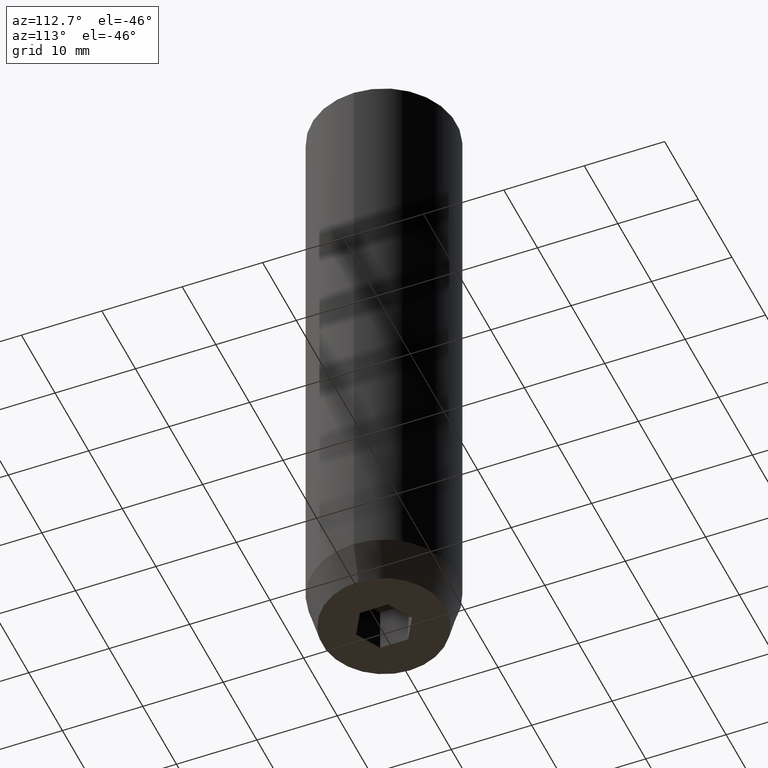
[diagram: clean part render]
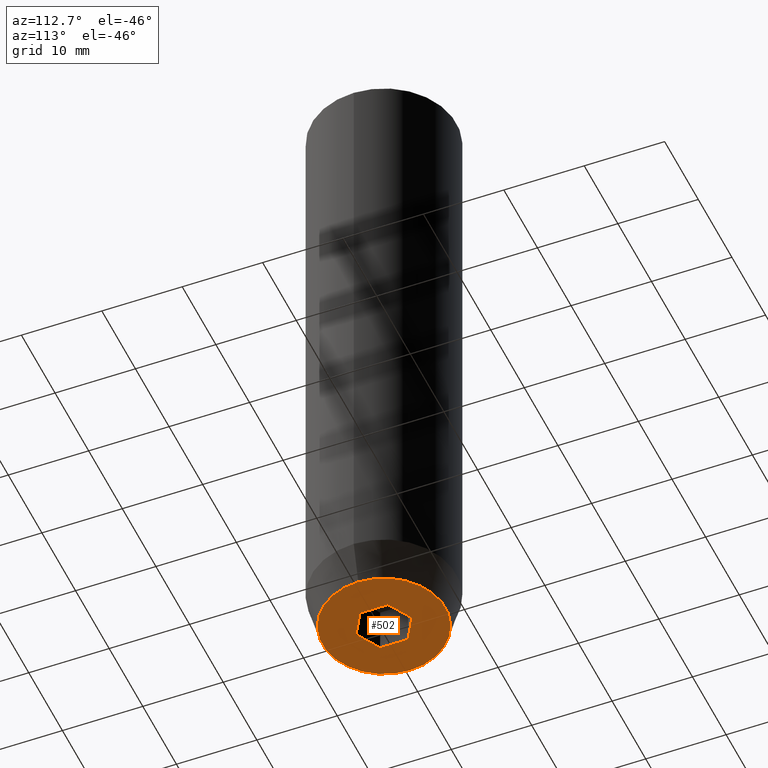
[diagram: same view with one face highlighted and labeled with its STEP entity id]
A machine part, auxiliary view. The second image highlights one B-rep face of the part: STEP entity #502.
In plain terms, the highlighted planar face has unit normal (0, 0, -1).
Its self-contained STEP definition (entity closure, byte-faithful):
#3 = CARTESIAN_POINT ( 'NONE',  ( 0.000000000000000000, 0.000000000000000000, -80.00000000000000000 ) ) ;
#13 = DIRECTION ( 'NONE',  ( 1.000000000000000000, 0.000000000000000000, 0.000000000000000000 ) ) ;
#21 = DIRECTION ( 'NONE',  ( 0.8660254037844387076, 0.4999999999999997224, 0.000000000000000000 ) ) ;
#31 = FACE_BOUND ( 'NONE', #237, .T. ) ;
#32 = ORIENTED_EDGE ( 'NONE', *, *, #507, .F. ) ;
#35 = EDGE_CURVE ( 'NONE', #381, #435, #213, .T. ) ;
#36 = CARTESIAN_POINT ( 'NONE',  ( 0.000000000000000000, -3.464101615137753942, -80.00000000000000000 ) ) ;
#48 = VERTEX_POINT ( 'NONE', #251 ) ;
#59 = DIRECTION ( 'NONE',  ( 2.503857664561932376E-16, 1.000000000000000000, 0.000000000000000000 ) ) ;
#69 = DIRECTION ( 'NONE',  ( -2.503857664561932376E-16, -1.000000000000000000, 0.000000000000000000 ) ) ;
#75 = ORIENTED_EDGE ( 'NONE', *, *, #598, .F. ) ;
#86 = CARTESIAN_POINT ( 'NONE',  ( 0.000000000000000000, 0.000000000000000000, -80.00000000000000000 ) ) ;
#93 = EDGE_CURVE ( 'NONE', #246, #441, #447, .T. ) ;
#94 = CARTESIAN_POINT ( 'NONE',  ( -7.660254037844381969, 1.020146339021394469E-15, -80.00000000000000000 ) ) ;
#134 = EDGE_CURVE ( 'NONE', #483, #48, #508, .T. ) ;
#138 = DIRECTION ( 'NONE',  ( 0.8660254037844387076, -0.4999999999999997780, 0.000000000000000000 ) ) ;
#143 = DIRECTION ( 'NONE',  ( -0.000000000000000000, -0.000000000000000000, 1.000000000000000000 ) ) ;
#174 = CARTESIAN_POINT ( 'NONE',  ( 0.000000000000000000, 7.660254037844381969, -80.00000000000000000 ) ) ;
#178 = CARTESIAN_POINT ( 'NONE',  ( 0.000000000000000000, 3.464101615137754830, -80.00000000000000000 ) ) ;
#190 = CARTESIAN_POINT ( 'NONE',  ( 1.499999999999999112, 2.598076211353316012, -80.00000000000000000 ) ) ;
#197 = ORIENTED_EDGE ( 'NONE', *, *, #93, .F. ) ;
#198 = VECTOR ( 'NONE', #638, 999.9999999999998863 ) ;
#199 = VECTOR ( 'NONE', #69, 1000.000000000000000 ) ;
#213 = CIRCLE ( 'NONE', #304, 7.660254037844381969 ) ;
#215 = VECTOR ( 'NONE', #138, 1000.000000000000114 ) ;
#226 = CARTESIAN_POINT ( 'NONE',  ( -3.000000000000000888, -1.732050807568876527, -80.00000000000000000 ) ) ;
#230 = ORIENTED_EDGE ( 'NONE', *, *, #134, .F. ) ;
#237 = EDGE_LOOP ( 'NONE', ( #32, #230, #533, #197, #524, #368 ) ) ;
#246 = VERTEX_POINT ( 'NONE', #555 ) ;
#251 = CARTESIAN_POINT ( 'NONE',  ( -3.000000000000000000, 1.732050807568877859, -80.00000000000000000 ) ) ;
#293 = LINE ( 'NONE', #190, #215 ) ;
#304 = AXIS2_PLACEMENT_3D ( 'NONE', #3, #143, #451 ) ;
#309 = AXIS2_PLACEMENT_3D ( 'NONE', #86, #463, #13 ) ;
#320 = PLANE ( 'NONE',  #503 ) ;
#325 = ORIENTED_EDGE ( 'NONE', *, *, #35, .F. ) ;
#328 = CARTESIAN_POINT ( 'NONE',  ( 2.999999999999999556, -7.511572993685796142E-16, -80.00000000000000000 ) ) ;
#355 = VECTOR ( 'NONE', #513, 1000.000000000000114 ) ;
#360 = CARTESIAN_POINT ( 'NONE',  ( 3.000000000000000000, 1.732050807568877193, -80.00000000000000000 ) ) ;
#362 = VECTOR ( 'NONE', #59, 1000.000000000000000 ) ;
#368 = ORIENTED_EDGE ( 'NONE', *, *, #417, .F. ) ;
#369 = LINE ( 'NONE', #564, #355 ) ;
#381 = VERTEX_POINT ( 'NONE', #94 ) ;
#401 = EDGE_CURVE ( 'NONE', #441, #483, #369, .T. ) ;
#417 = EDGE_CURVE ( 'NONE', #528, #566, #293, .T. ) ;
#420 = DIRECTION ( 'NONE',  ( -1.000000000000000000, 0.000000000000000000, -0.000000000000000000 ) ) ;
#435 = VERTEX_POINT ( 'NONE', #529 ) ;
#441 = VERTEX_POINT ( 'NONE', #36 ) ;
#447 = LINE ( 'NONE', #584, #198 ) ;
#451 = DIRECTION ( 'NONE',  ( 1.000000000000000000, 0.000000000000000000, 0.000000000000000000 ) ) ;
#463 = DIRECTION ( 'NONE',  ( -0.000000000000000000, -0.000000000000000000, 1.000000000000000000 ) ) ;
#470 = LINE ( 'NONE', #477, #473 ) ;
#473 = VECTOR ( 'NONE', #21, 1000.000000000000114 ) ;
#477 = CARTESIAN_POINT ( 'NONE',  ( -1.499999999999999334, 2.598076211353316456, -80.00000000000000000 ) ) ;
#483 = VERTEX_POINT ( 'NONE', #226 ) ;
#502 = ADVANCED_FACE ( 'NONE', ( #31, #603 ), #320, .T. ) ;
#503 = AXIS2_PLACEMENT_3D ( 'NONE', #174, #510, #420 ) ;
#507 = EDGE_CURVE ( 'NONE', #48, #528, #470, .T. ) ;
#508 = LINE ( 'NONE', #552, #362 ) ;
#510 = DIRECTION ( 'NONE',  ( 0.000000000000000000, 0.000000000000000000, -1.000000000000000000 ) ) ;
#513 = DIRECTION ( 'NONE',  ( -0.8660254037844387076, 0.4999999999999997780, 0.000000000000000000 ) ) ;
#524 = ORIENTED_EDGE ( 'NONE', *, *, #553, .F. ) ;
#528 = VERTEX_POINT ( 'NONE', #178 ) ;
#529 = CARTESIAN_POINT ( 'NONE',  ( 7.660254037844381969, 0.000000000000000000, -80.00000000000000000 ) ) ;
#531 = EDGE_LOOP ( 'NONE', ( #75, #325 ) ) ;
#533 = ORIENTED_EDGE ( 'NONE', *, *, #401, .F. ) ;
#552 = CARTESIAN_POINT ( 'NONE',  ( -3.000000000000000444, 7.511572993685798115E-16, -80.00000000000000000 ) ) ;
#553 = EDGE_CURVE ( 'NONE', #566, #246, #567, .T. ) ;
#555 = CARTESIAN_POINT ( 'NONE',  ( 2.999999999999999112, -1.732050807568876971, -80.00000000000000000 ) ) ;
#564 = CARTESIAN_POINT ( 'NONE',  ( -1.499999999999999112, -2.598076211353316012, -80.00000000000000000 ) ) ;
#566 = VERTEX_POINT ( 'NONE', #360 ) ;
#567 = LINE ( 'NONE', #328, #199 ) ;
#584 = CARTESIAN_POINT ( 'NONE',  ( 1.499999999999999556, -2.598076211353316012, -80.00000000000000000 ) ) ;
#598 = EDGE_CURVE ( 'NONE', #435, #381, #637, .T. ) ;
#603 = FACE_OUTER_BOUND ( 'NONE', #531, .T. ) ;
#637 = CIRCLE ( 'NONE', #309, 7.660254037844381969 ) ;
#638 = DIRECTION ( 'NONE',  ( -0.8660254037844387076, -0.4999999999999999445, 0.000000000000000000 ) ) ;